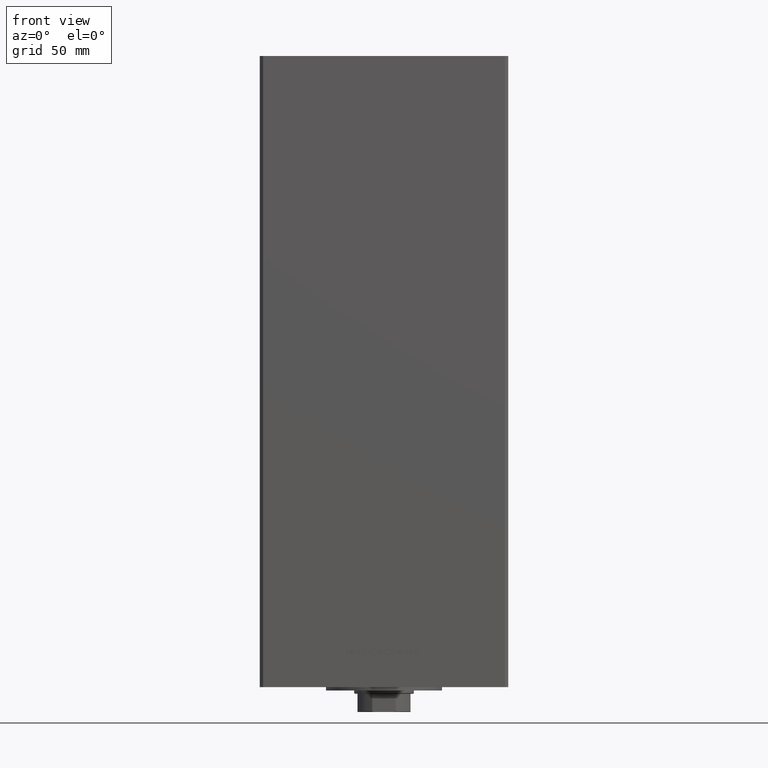
[diagram: clean part render]
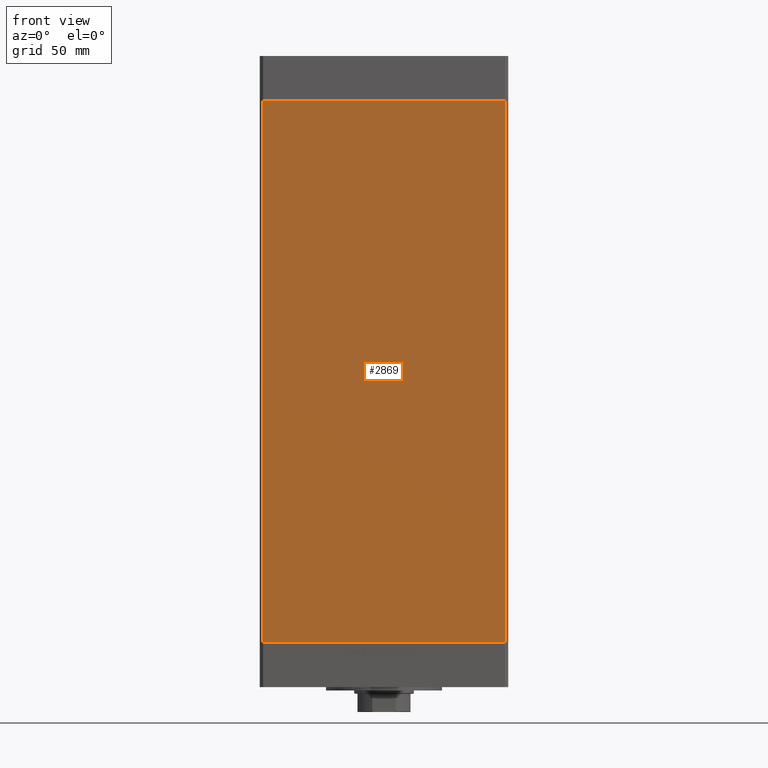
[diagram: same view with one face highlighted and labeled with its STEP entity id]
A machine part, front view. The second image highlights one B-rep face of the part: STEP entity #2869.
In plain terms, the highlighted planar face has unit normal (0, 1, 0).
Its self-contained STEP definition (entity closure, byte-faithful):
#90 = CARTESIAN_POINT ( 'NONE',  ( -72.99999999999998579, -62.50000000000000000, 327.0000000000000000 ) ) ;
#2869 = ADVANCED_FACE ( 'NONE', ( #16076 ), #34327, .F. ) ;
#3215 = DIRECTION ( 'NONE',  ( -0.000000000000000000, -0.000000000000000000, -1.000000000000000000 ) ) ;
#5288 = CARTESIAN_POINT ( 'NONE',  ( 72.99999999999998579, -62.50000000000000000, 327.0000000000000000 ) ) ;
#6598 = VECTOR ( 'NONE', #3215, 1000.000000000000000 ) ;
#7678 = CARTESIAN_POINT ( 'NONE',  ( 72.99999999999998579, -62.50000000000000000, 327.0000000000000000 ) ) ;
#8214 = VERTEX_POINT ( 'NONE', #10200 ) ;
#9144 = VERTEX_POINT ( 'NONE', #5288 ) ;
#10200 = CARTESIAN_POINT ( 'NONE',  ( -72.99999999999998579, -62.50000000000000000, 0.000000000000000000 ) ) ;
#10577 = DIRECTION ( 'NONE',  ( 1.000000000000000000, 0.000000000000000000, 0.000000000000000000 ) ) ;
#12170 = CARTESIAN_POINT ( 'NONE',  ( -72.99999999999998579, -62.50000000000000000, 327.0000000000000000 ) ) ;
#13515 = VERTEX_POINT ( 'NONE', #20316 ) ;
#13973 = VECTOR ( 'NONE', #10577, 1000.000000000000000 ) ;
#15121 = DIRECTION ( 'NONE',  ( 1.000000000000000000, 0.000000000000000000, 0.000000000000000000 ) ) ;
#16076 = FACE_OUTER_BOUND ( 'NONE', #17266, .T. ) ;
#17266 = EDGE_LOOP ( 'NONE', ( #29860, #19230, #22563, #20062 ) ) ;
#19230 = ORIENTED_EDGE ( 'NONE', *, *, #22634, .F. ) ;
#19641 = AXIS2_PLACEMENT_3D ( 'NONE', #90, #43037, #42300 ) ;
#20062 = ORIENTED_EDGE ( 'NONE', *, *, #28673, .T. ) ;
#20316 = CARTESIAN_POINT ( 'NONE',  ( 72.99999999999998579, -62.50000000000000000, 0.000000000000000000 ) ) ;
#22204 = LINE ( 'NONE', #7678, #34357 ) ;
#22563 = ORIENTED_EDGE ( 'NONE', *, *, #41894, .F. ) ;
#22634 = EDGE_CURVE ( 'NONE', #9144, #13515, #22204, .T. ) ;
#28464 = VECTOR ( 'NONE', #15121, 1000.000000000000000 ) ;
#28673 = EDGE_CURVE ( 'NONE', #38112, #8214, #29722, .T. ) ;
#29722 = LINE ( 'NONE', #33701, #6598 ) ;
#29860 = ORIENTED_EDGE ( 'NONE', *, *, #38790, .T. ) ;
#33701 = CARTESIAN_POINT ( 'NONE',  ( -72.99999999999998579, -62.50000000000000000, 327.0000000000000000 ) ) ;
#34327 = PLANE ( 'NONE',  #19641 ) ;
#34357 = VECTOR ( 'NONE', #49130, 1000.000000000000000 ) ;
#38112 = VERTEX_POINT ( 'NONE', #12170 ) ;
#38790 = EDGE_CURVE ( 'NONE', #8214, #13515, #44797, .T. ) ;
#40858 = CARTESIAN_POINT ( 'NONE',  ( -72.99999999999998579, -62.50000000000000000, 327.0000000000000000 ) ) ;
#41894 = EDGE_CURVE ( 'NONE', #38112, #9144, #49308, .T. ) ;
#42300 = DIRECTION ( 'NONE',  ( 0.000000000000000000, -0.000000000000000000, 1.000000000000000000 ) ) ;
#43037 = DIRECTION ( 'NONE',  ( 0.000000000000000000, 1.000000000000000000, 0.000000000000000000 ) ) ;
#44797 = LINE ( 'NONE', #45031, #13973 ) ;
#45031 = CARTESIAN_POINT ( 'NONE',  ( -72.99999999999998579, -62.50000000000000000, 0.000000000000000000 ) ) ;
#49130 = DIRECTION ( 'NONE',  ( -0.000000000000000000, -0.000000000000000000, -1.000000000000000000 ) ) ;
#49308 = LINE ( 'NONE', #40858, #28464 ) ;